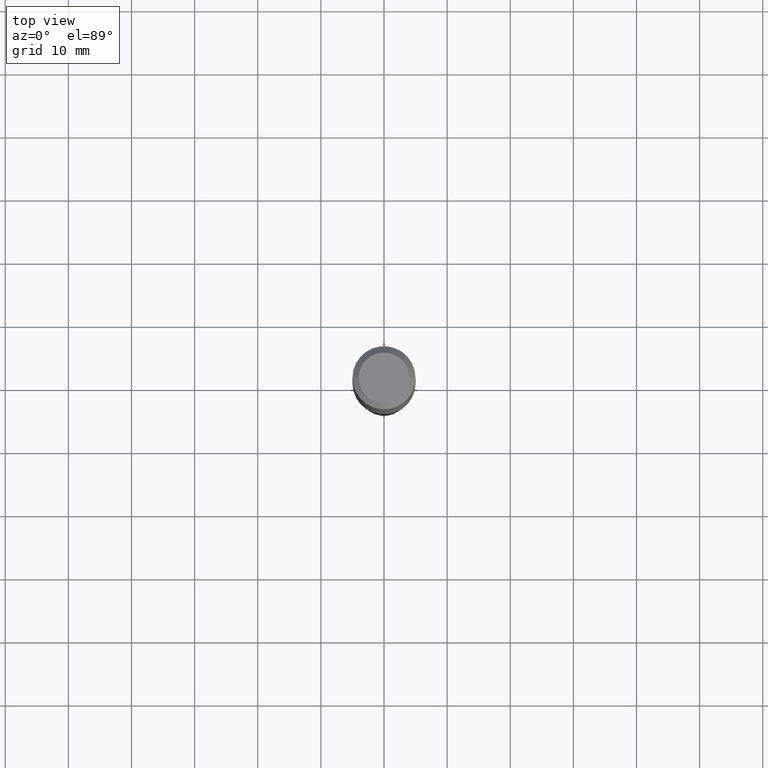
[diagram: clean part render]
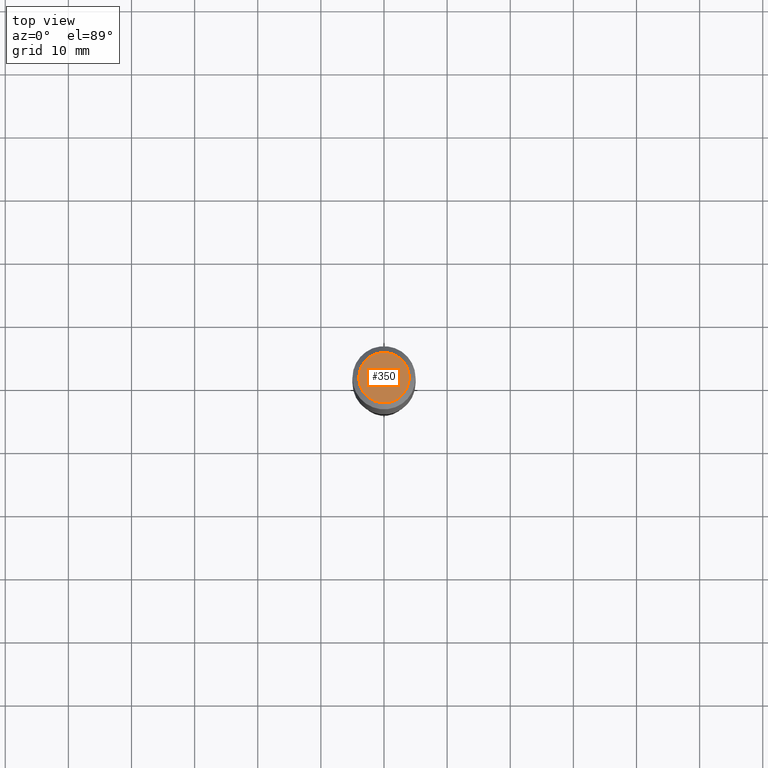
[diagram: same view with one face highlighted and labeled with its STEP entity id]
A machine part, top view. The second image highlights one B-rep face of the part: STEP entity #350.
In plain terms, the highlighted planar face has unit normal (0, -0, -1).
Its self-contained STEP definition (entity closure, byte-faithful):
#39 = EDGE_CURVE ( 'NONE', #58, #49, #92, .T. ) ;
#46 = AXIS2_PLACEMENT_3D ( 'NONE', #127, #72, #438 ) ;
#49 = VERTEX_POINT ( 'NONE', #367 ) ;
#58 = VERTEX_POINT ( 'NONE', #319 ) ;
#61 = CIRCLE ( 'NONE', #86, 0.1574800000000000089 ) ;
#72 = DIRECTION ( 'NONE',  ( 2.438088387897960049E-29, -3.491481338843145188E-15, -1.000000000000000000 ) ) ;
#86 = AXIS2_PLACEMENT_3D ( 'NONE', #202, #156, #315 ) ;
#92 = CIRCLE ( 'NONE', #298, 0.1574800000000000089 ) ;
#127 = CARTESIAN_POINT ( 'NONE',  ( -4.713871149261283817E-47, 6.730158695841841775E-33, 1.927594061857935365E-18 ) ) ;
#156 = DIRECTION ( 'NONE',  ( -2.445468806185136597E-29, 3.491481338843145583E-15, 1.000000000000000000 ) ) ;
#158 = PLANE ( 'NONE',  #46 ) ;
#160 = DIRECTION ( 'NONE',  ( -2.445468806185136597E-29, 3.491481338843145583E-15, 1.000000000000000000 ) ) ;
#162 = DIRECTION ( 'NONE',  ( 1.000000000000000000, -6.982962677686265922E-15, 4.876223630392693006E-29 ) ) ;
#202 = CARTESIAN_POINT ( 'NONE',  ( -9.427742298522567634E-47, 1.346031739168368355E-32, 3.855188123715870730E-18 ) ) ;
#274 = FACE_OUTER_BOUND ( 'NONE', #346, .T. ) ;
#298 = AXIS2_PLACEMENT_3D ( 'NONE', #363, #160, #162 ) ;
#304 = ORIENTED_EDGE ( 'NONE', *, *, #39, .T. ) ;
#315 = DIRECTION ( 'NONE',  ( 1.000000000000000000, -6.982962677686265922E-15, 4.876223630392693006E-29 ) ) ;
#319 = CARTESIAN_POINT ( 'NONE',  ( -0.1574800000000000089, 1.168406772637159618E-15, 3.855188123707939751E-18 ) ) ;
#346 = EDGE_LOOP ( 'NONE', ( #304, #473 ) ) ;
#350 = ADVANCED_FACE ( 'NONE', ( #274 ), #158, .F. ) ;
#363 = CARTESIAN_POINT ( 'NONE',  ( -9.427742298522567634E-47, 1.346031739168368355E-32, 3.855188123715870730E-18 ) ) ;
#367 = CARTESIAN_POINT ( 'NONE',  ( 0.1574800000000000089, -1.284169937930321189E-15, 3.855188123724205385E-18 ) ) ;
#388 = EDGE_CURVE ( 'NONE', #49, #58, #61, .T. ) ;
#438 = DIRECTION ( 'NONE',  ( -1.000000000000000000, 6.982962677686265922E-15, -4.876176775795935793E-29 ) ) ;
#473 = ORIENTED_EDGE ( 'NONE', *, *, #388, .T. ) ;